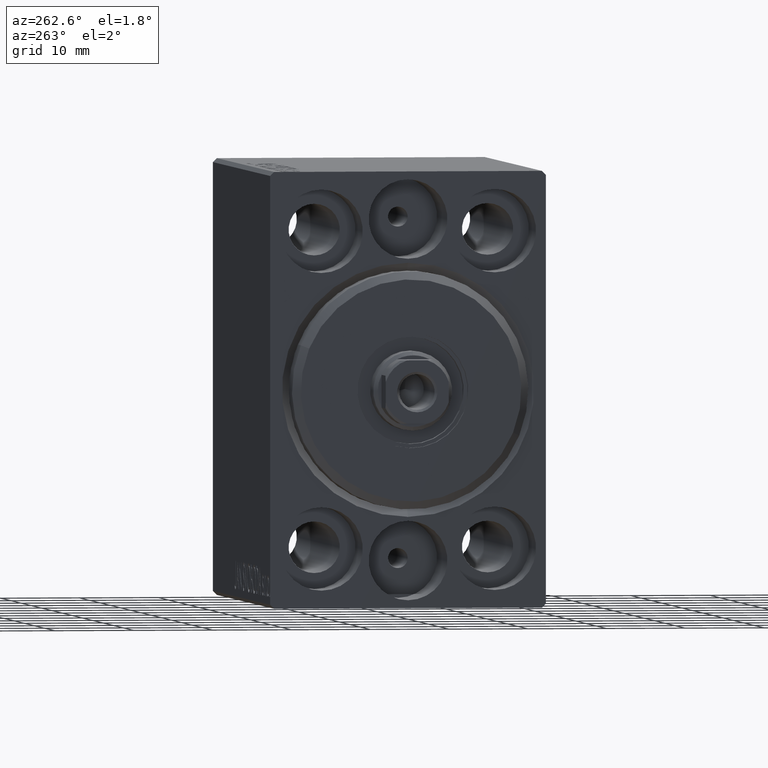
[diagram: clean part render]
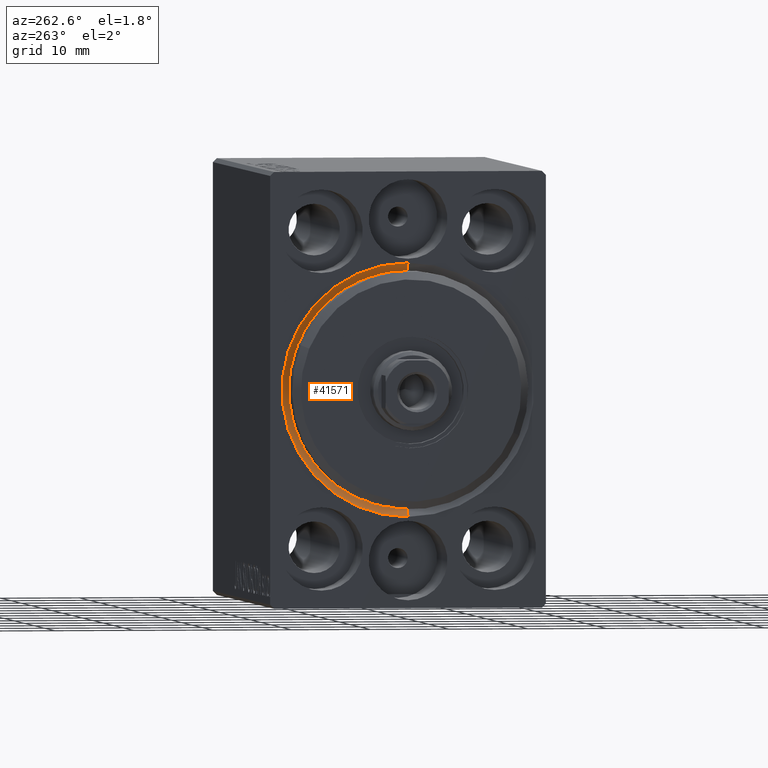
[diagram: same view with one face highlighted and labeled with its STEP entity id]
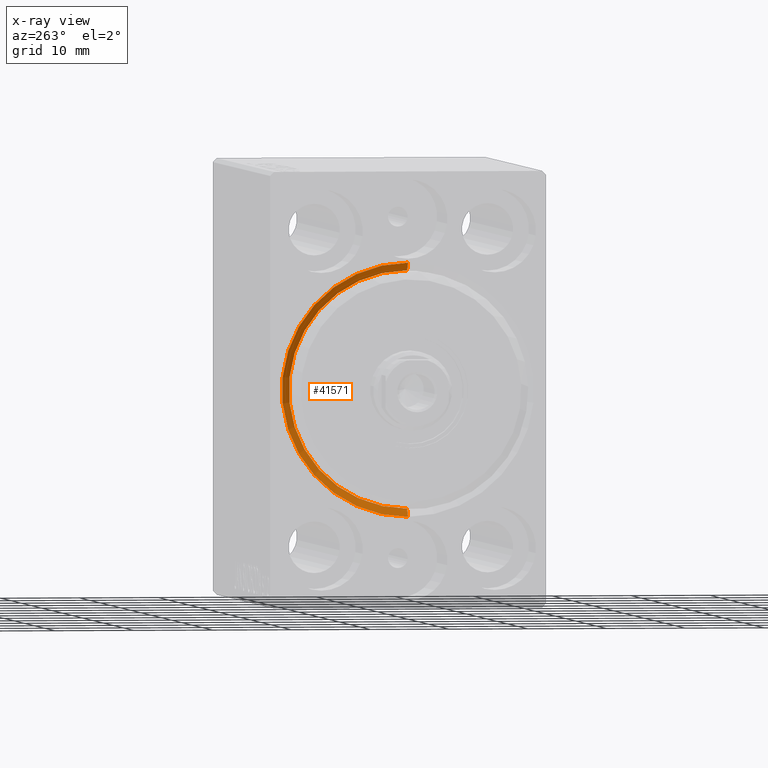
[diagram: x-ray of the same camera — body ghosted, the highlighted face saturated]
A machine part, auxiliary view. The second image highlights one B-rep face of the part: STEP entity #41571.
The next image is the same camera in x-ray: the body ghosted, the highlighted face saturated — about 0% of this face is hidden behind the body in this view.
In plain terms, the highlighted conical surface has half-angle 45 deg.
Its self-contained STEP definition (entity closure, byte-faithful):
#1553 = DIRECTION ( 'NONE',  ( -0.7071067811865469066, 8.659560562354940254E-17, -0.7071067811865481278 ) ) ;
#1794 = EDGE_CURVE ( 'NONE', #20459, #31387, #30945, .T. ) ;
#4035 = CARTESIAN_POINT ( 'NONE',  ( 0.000000000000000000, 0.000000000000000000, 0.000000000000000000 ) ) ;
#6022 = DIRECTION ( 'NONE',  ( 0.000000000000000000, 0.000000000000000000, -1.000000000000000000 ) ) ;
#8722 = VERTEX_POINT ( 'NONE', #26357 ) ;
#9415 = EDGE_LOOP ( 'NONE', ( #12706, #21527, #23982, #42175 ) ) ;
#12706 = ORIENTED_EDGE ( 'NONE', *, *, #15244, .F. ) ;
#15015 = DIRECTION ( 'NONE',  ( -1.000000000000000000, 0.000000000000000000, 0.000000000000000000 ) ) ;
#15244 = EDGE_CURVE ( 'NONE', #8722, #16818, #36484, .T. ) ;
#16756 = CARTESIAN_POINT ( 'NONE',  ( 1.000000000000013101, 0.000000000000000000, 15.00000000000000000 ) ) ;
#16818 = VERTEX_POINT ( 'NONE', #30362 ) ;
#17773 = CIRCLE ( 'NONE', #30527, 16.00000000000001421 ) ;
#18002 = DIRECTION ( 'NONE',  ( 0.000000000000000000, 0.000000000000000000, -1.000000000000000000 ) ) ;
#18333 = DIRECTION ( 'NONE',  ( 0.000000000000000000, 0.000000000000000000, 1.000000000000000000 ) ) ;
#20055 = EDGE_CURVE ( 'NONE', #20459, #8722, #39812, .T. ) ;
#20459 = VERTEX_POINT ( 'NONE', #25220 ) ;
#20777 = AXIS2_PLACEMENT_3D ( 'NONE', #31643, #15015, #18333 ) ;
#21527 = ORIENTED_EDGE ( 'NONE', *, *, #20055, .F. ) ;
#22828 = CARTESIAN_POINT ( 'NONE',  ( 0.000000000000000000, 0.000000000000000000, 16.00000000000001421 ) ) ;
#23982 = ORIENTED_EDGE ( 'NONE', *, *, #1794, .T. ) ;
#25220 = CARTESIAN_POINT ( 'NONE',  ( 1.000000000000013101, 0.000000000000000000, 15.00000000000000000 ) ) ;
#26357 = CARTESIAN_POINT ( 'NONE',  ( 1.000000000000013101, 1.836970198721029589E-15, -15.00000000000000000 ) ) ;
#29549 = VECTOR ( 'NONE', #40689, 1000.000000000000114 ) ;
#30362 = CARTESIAN_POINT ( 'NONE',  ( 0.000000000000000000, 1.959434878635766709E-15, -16.00000000000001421 ) ) ;
#30527 = AXIS2_PLACEMENT_3D ( 'NONE', #4035, #41484, #18002 ) ;
#30945 = LINE ( 'NONE', #16756, #29549 ) ;
#31387 = VERTEX_POINT ( 'NONE', #22828 ) ;
#31643 = CARTESIAN_POINT ( 'NONE',  ( 1.000000000000013101, 0.000000000000000000, 0.000000000000000000 ) ) ;
#31916 = CARTESIAN_POINT ( 'NONE',  ( 1.000000000000013101, 1.836970198721029589E-15, -15.00000000000000000 ) ) ;
#34019 = VECTOR ( 'NONE', #1553, 1000.000000000000114 ) ;
#34419 = EDGE_CURVE ( 'NONE', #16818, #31387, #17773, .T. ) ;
#36484 = LINE ( 'NONE', #31916, #34019 ) ;
#38396 = AXIS2_PLACEMENT_3D ( 'NONE', #43674, #39706, #6022 ) ;
#38512 = FACE_OUTER_BOUND ( 'NONE', #9415, .T. ) ;
#39706 = DIRECTION ( 'NONE',  ( -1.000000000000000000, 0.000000000000000000, 0.000000000000000000 ) ) ;
#39812 = CIRCLE ( 'NONE', #38396, 15.00000000000000000 ) ;
#39887 = CONICAL_SURFACE ( 'NONE', #20777, 15.00000000000000000, 0.7853981633974491672 ) ;
#40689 = DIRECTION ( 'NONE',  ( -0.7071067811865469066, 0.000000000000000000, 0.7071067811865481278 ) ) ;
#41484 = DIRECTION ( 'NONE',  ( 1.000000000000000000, 0.000000000000000000, 0.000000000000000000 ) ) ;
#41571 = ADVANCED_FACE ( 'NONE', ( #38512 ), #39887, .F. ) ;
#42175 = ORIENTED_EDGE ( 'NONE', *, *, #34419, .F. ) ;
#43674 = CARTESIAN_POINT ( 'NONE',  ( 1.000000000000013101, 0.000000000000000000, 0.000000000000000000 ) ) ;